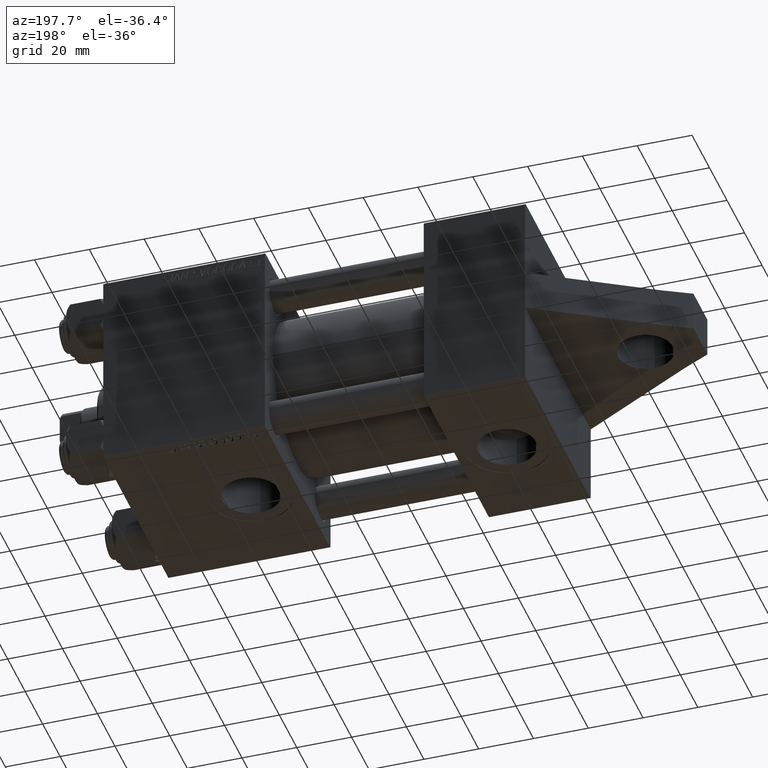
[diagram: clean part render]
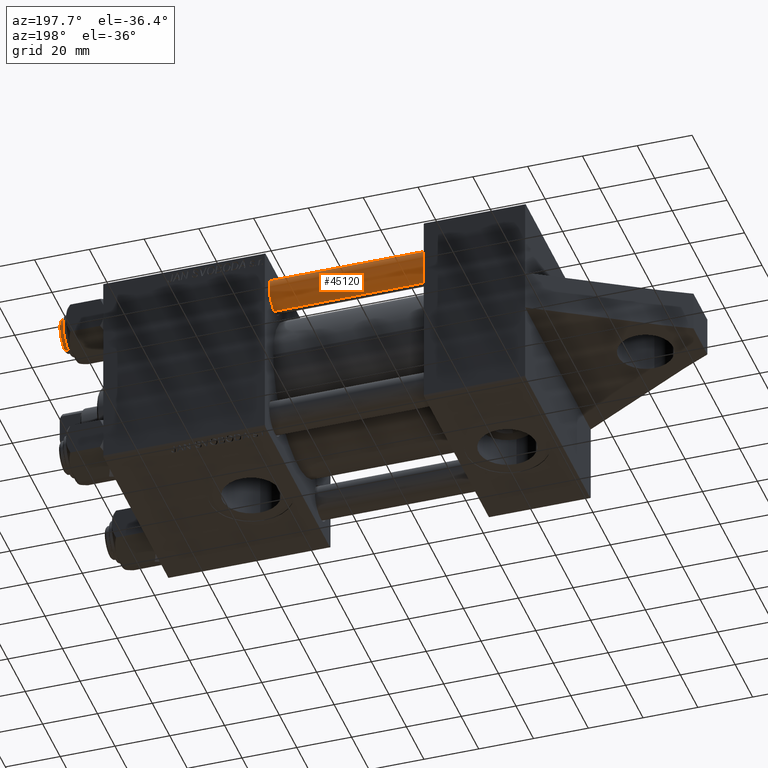
[diagram: same view with one face highlighted and labeled with its STEP entity id]
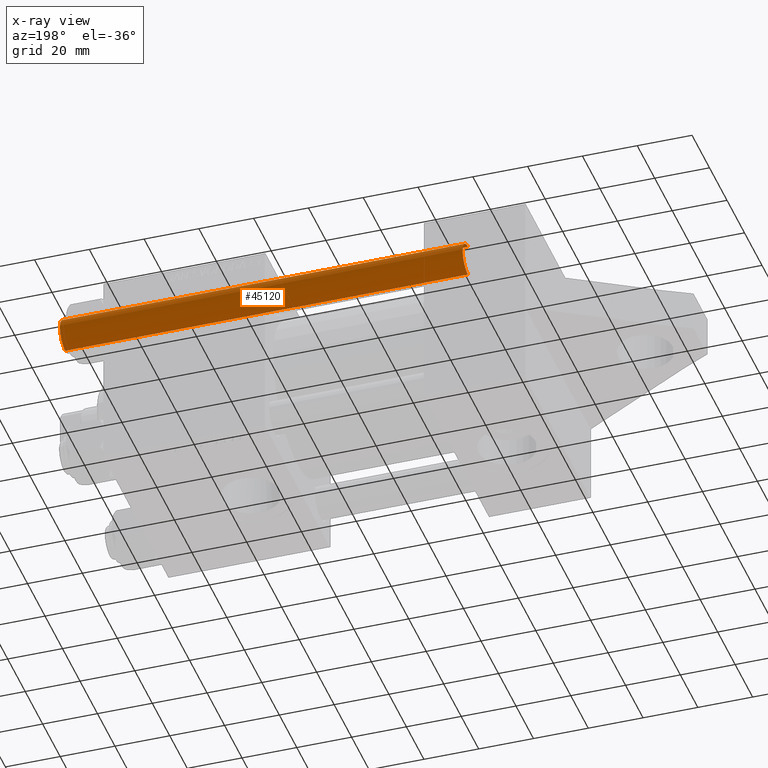
[diagram: x-ray of the same camera — body ghosted, the highlighted face saturated]
A machine part, auxiliary view. The second image highlights one B-rep face of the part: STEP entity #45120.
The next image is the same camera in x-ray: the body ghosted, the highlighted face saturated — about 0% of this face is hidden behind the body in this view.
In plain terms, the highlighted cylindrical surface (edge-blend (fillet) strip) has radius 6 mm, axis along (-1, 0, -0).
Its self-contained STEP definition (entity closure, byte-faithful):
#1976 = CARTESIAN_POINT ( 'NONE',  ( 6.000000000000000888, 7.347880794884120722E-16, 147.5000000000000000 ) ) ;
#2384 = VERTEX_POINT ( 'NONE', #8320 ) ;
#2886 = CIRCLE ( 'NONE', #37078, 6.000000000000000888 ) ;
#3613 = ORIENTED_EDGE ( 'NONE', *, *, #21811, .T. ) ;
#4230 = CIRCLE ( 'NONE', #30241, 6.000000000000000888 ) ;
#4920 = DIRECTION ( 'NONE',  ( -0.000000000000000000, -0.000000000000000000, -1.000000000000000000 ) ) ;
#4940 = EDGE_CURVE ( 'NONE', #14979, #19026, #4230, .T. ) ;
#6681 = LINE ( 'NONE', #35296, #28408 ) ;
#8320 = CARTESIAN_POINT ( 'NONE',  ( 6.000000000000000888, 7.347880794884120722E-16, 0.5000000000000281997 ) ) ;
#8668 = VERTEX_POINT ( 'NONE', #21203 ) ;
#8869 = CARTESIAN_POINT ( 'NONE',  ( 0.000000000000000000, 0.000000000000000000, 148.0000000000000000 ) ) ;
#9492 = DIRECTION ( 'NONE',  ( -0.000000000000000000, -0.000000000000000000, 1.000000000000000000 ) ) ;
#10182 = DIRECTION ( 'NONE',  ( 0.000000000000000000, 0.000000000000000000, -1.000000000000000000 ) ) ;
#11495 = CARTESIAN_POINT ( 'NONE',  ( -6.000000000000000888, 0.000000000000000000, 148.0000000000000000 ) ) ;
#14979 = VERTEX_POINT ( 'NONE', #30869 ) ;
#19026 = VERTEX_POINT ( 'NONE', #1976 ) ;
#19121 = DIRECTION ( 'NONE',  ( -1.000000000000000000, 0.000000000000000000, 0.000000000000000000 ) ) ;
#21203 = CARTESIAN_POINT ( 'NONE',  ( -6.000000000000000888, 0.000000000000000000, 0.5000000000000281997 ) ) ;
#21811 = EDGE_CURVE ( 'NONE', #19026, #2384, #6681, .T. ) ;
#23454 = CARTESIAN_POINT ( 'NONE',  ( 0.000000000000000000, 0.000000000000000000, 0.5000000000000281997 ) ) ;
#24294 = ORIENTED_EDGE ( 'NONE', *, *, #41459, .F. ) ;
#24378 = DIRECTION ( 'NONE',  ( 1.000000000000000000, 0.000000000000000000, 0.000000000000000000 ) ) ;
#25222 = AXIS2_PLACEMENT_3D ( 'NONE', #8869, #4920, #19121 ) ;
#25697 = DIRECTION ( 'NONE',  ( -0.000000000000000000, -0.000000000000000000, -1.000000000000000000 ) ) ;
#28408 = VECTOR ( 'NONE', #35068, 1000.000000000000000 ) ;
#28566 = EDGE_LOOP ( 'NONE', ( #35608, #3613, #31931, #24294 ) ) ;
#30241 = AXIS2_PLACEMENT_3D ( 'NONE', #42056, #10182, #24378 ) ;
#30869 = CARTESIAN_POINT ( 'NONE',  ( -6.000000000000000888, 0.000000000000000000, 147.5000000000000000 ) ) ;
#31931 = ORIENTED_EDGE ( 'NONE', *, *, #44647, .T. ) ;
#33932 = DIRECTION ( 'NONE',  ( 1.000000000000000000, 0.000000000000000000, 0.000000000000000000 ) ) ;
#35068 = DIRECTION ( 'NONE',  ( -0.000000000000000000, -0.000000000000000000, -1.000000000000000000 ) ) ;
#35296 = CARTESIAN_POINT ( 'NONE',  ( 6.000000000000000888, 7.347880794884120722E-16, 148.0000000000000000 ) ) ;
#35608 = ORIENTED_EDGE ( 'NONE', *, *, #4940, .T. ) ;
#36570 = CYLINDRICAL_SURFACE ( 'NONE', #25222, 6.000000000000000888 ) ;
#37078 = AXIS2_PLACEMENT_3D ( 'NONE', #23454, #9492, #33932 ) ;
#40726 = VECTOR ( 'NONE', #25697, 1000.000000000000000 ) ;
#41459 = EDGE_CURVE ( 'NONE', #14979, #8668, #43369, .T. ) ;
#42056 = CARTESIAN_POINT ( 'NONE',  ( 0.000000000000000000, 0.000000000000000000, 147.5000000000000000 ) ) ;
#43317 = FACE_OUTER_BOUND ( 'NONE', #28566, .T. ) ;
#43369 = LINE ( 'NONE', #11495, #40726 ) ;
#44647 = EDGE_CURVE ( 'NONE', #2384, #8668, #2886, .T. ) ;
#45120 = ADVANCED_FACE ( 'NONE', ( #43317 ), #36570, .T. ) ;